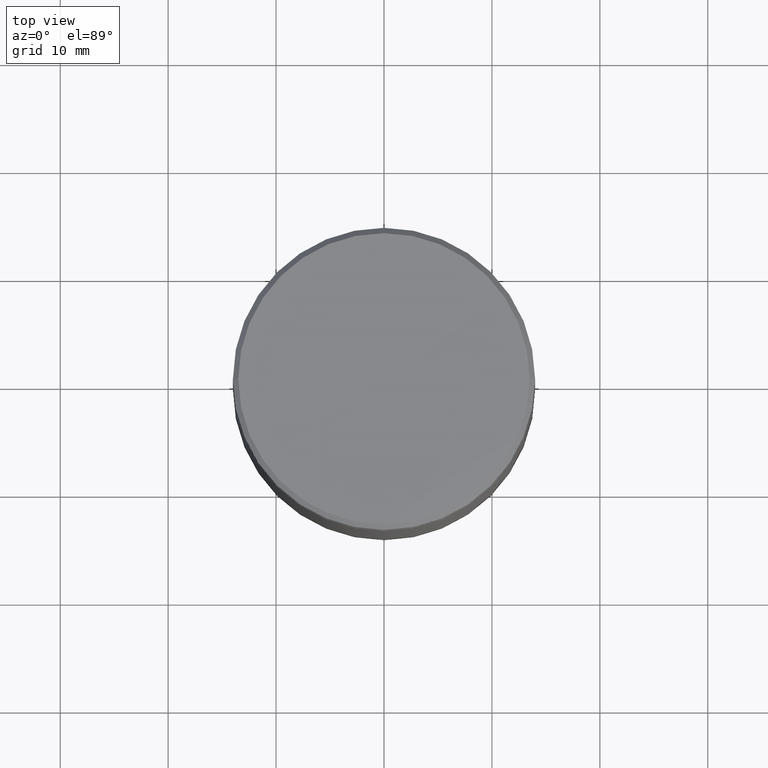
[diagram: clean part render]
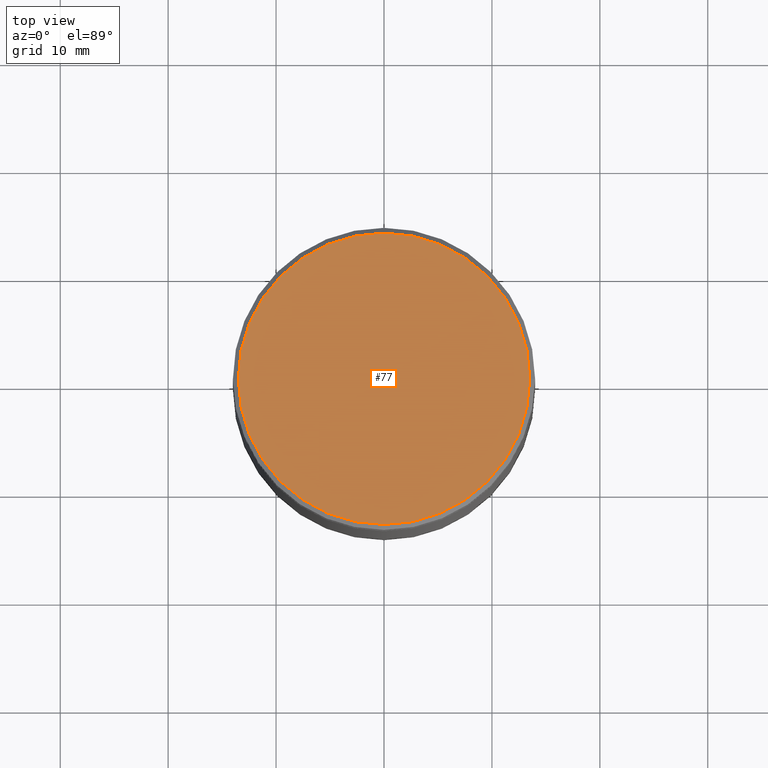
[diagram: same view with one face highlighted and labeled with its STEP entity id]
A machine part, top view. The second image highlights one B-rep face of the part: STEP entity #77.
In plain terms, the highlighted planar face has unit normal (0, -0, 1).
Its self-contained STEP definition (entity closure, byte-faithful):
#19 = EDGE_CURVE ( 'NONE', #69, #490, #403, .T. ) ;
#25 = AXIS2_PLACEMENT_3D ( 'NONE', #161, #195, #415 ) ;
#59 = AXIS2_PLACEMENT_3D ( 'NONE', #241, #411, #111 ) ;
#69 = VERTEX_POINT ( 'NONE', #513 ) ;
#77 = ADVANCED_FACE ( 'NONE', ( #284 ), #355, .T. ) ;
#79 = ORIENTED_EDGE ( 'NONE', *, *, #19, .T. ) ;
#111 = DIRECTION ( 'NONE',  ( 1.000000000000000000, 0.000000000000000000, 0.000000000000000000 ) ) ;
#161 = CARTESIAN_POINT ( 'NONE',  ( 0.000000000000000000, 0.000000000000000000, 0.000000000000000000 ) ) ;
#195 = DIRECTION ( 'NONE',  ( 0.000000000000000000, -0.000000000000000000, 1.000000000000000000 ) ) ;
#209 = DIRECTION ( 'NONE',  ( 1.000000000000000000, 0.000000000000000000, 0.000000000000000000 ) ) ;
#221 = ORIENTED_EDGE ( 'NONE', *, *, #273, .T. ) ;
#241 = CARTESIAN_POINT ( 'NONE',  ( 0.000000000000000000, 0.000000000000000000, 0.000000000000000000 ) ) ;
#273 = EDGE_CURVE ( 'NONE', #490, #69, #533, .T. ) ;
#284 = FACE_OUTER_BOUND ( 'NONE', #515, .T. ) ;
#355 = PLANE ( 'NONE',  #25 ) ;
#384 = DIRECTION ( 'NONE',  ( -0.000000000000000000, -0.000000000000000000, 1.000000000000000000 ) ) ;
#403 = CIRCLE ( 'NONE', #59, 13.50000000000001954 ) ;
#411 = DIRECTION ( 'NONE',  ( -0.000000000000000000, -0.000000000000000000, 1.000000000000000000 ) ) ;
#415 = DIRECTION ( 'NONE',  ( 1.000000000000000000, 0.000000000000000000, 0.000000000000000000 ) ) ;
#481 = AXIS2_PLACEMENT_3D ( 'NONE', #541, #384, #209 ) ;
#490 = VERTEX_POINT ( 'NONE', #508 ) ;
#508 = CARTESIAN_POINT ( 'NONE',  ( -13.50000000000001954, 0.000000000000000000, 0.000000000000000000 ) ) ;
#513 = CARTESIAN_POINT ( 'NONE',  ( 13.50000000000001954, 1.683889348827612034E-15, 0.000000000000000000 ) ) ;
#515 = EDGE_LOOP ( 'NONE', ( #221, #79 ) ) ;
#533 = CIRCLE ( 'NONE', #481, 13.50000000000001954 ) ;
#541 = CARTESIAN_POINT ( 'NONE',  ( 0.000000000000000000, 0.000000000000000000, 0.000000000000000000 ) ) ;